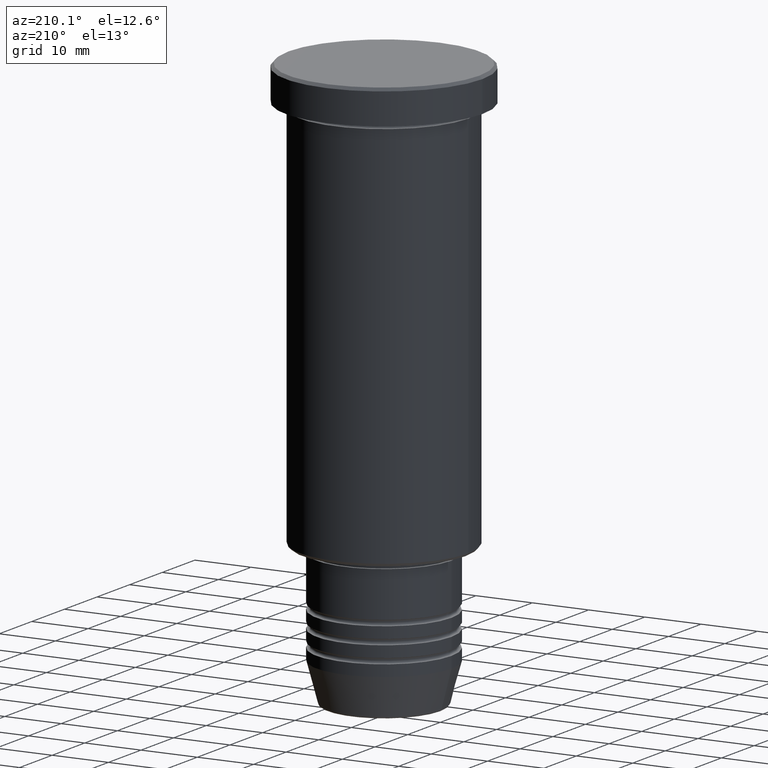
[diagram: clean part render]
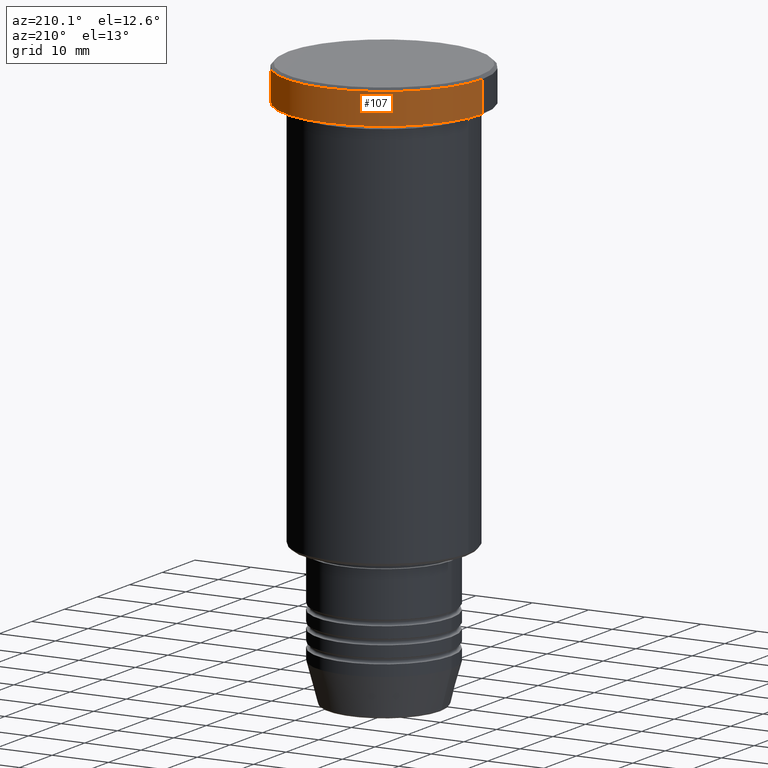
[diagram: same view with one face highlighted and labeled with its STEP entity id]
A machine part, auxiliary view. The second image highlights one B-rep face of the part: STEP entity #107.
In plain terms, the highlighted cylindrical surface (partial cylindrical patch) has radius 17.5 mm, axis along (-0, -0, 1).
Its self-contained STEP definition (entity closure, byte-faithful):
#44 = VECTOR ( 'NONE', #69, 1000.000000000000000 ) ;
#69 = DIRECTION ( 'NONE',  ( -0.000000000000000000, -0.000000000000000000, 1.000000000000000000 ) ) ;
#80 = DIRECTION ( 'NONE',  ( 1.000000000000000000, 0.000000000000000000, 0.000000000000000000 ) ) ;
#87 = ORIENTED_EDGE ( 'NONE', *, *, #892, .T. ) ;
#107 = ADVANCED_FACE ( 'NONE', ( #348 ), #274, .T. ) ;
#127 = ORIENTED_EDGE ( 'NONE', *, *, #242, .T. ) ;
#140 = VERTEX_POINT ( 'NONE', #1111 ) ;
#141 = CARTESIAN_POINT ( 'NONE',  ( 0.000000000000000000, 0.000000000000000000, -0.5000000000000003331 ) ) ;
#242 = EDGE_CURVE ( 'NONE', #1067, #1149, #916, .T. ) ;
#251 = EDGE_CURVE ( 'NONE', #140, #1067, #674, .T. ) ;
#274 = CYLINDRICAL_SURFACE ( 'NONE', #1080, 17.50000000000000000 ) ;
#280 = CARTESIAN_POINT ( 'NONE',  ( -17.50000000000000000, 2.143131898507868248E-15, 0.000000000000000000 ) ) ;
#331 = AXIS2_PLACEMENT_3D ( 'NONE', #640, #444, #992 ) ;
#348 = FACE_OUTER_BOUND ( 'NONE', #691, .T. ) ;
#362 = DIRECTION ( 'NONE',  ( -0.000000000000000000, -0.000000000000000000, 1.000000000000000000 ) ) ;
#384 = VERTEX_POINT ( 'NONE', #854 ) ;
#417 = ORIENTED_EDGE ( 'NONE', *, *, #251, .T. ) ;
#440 = CARTESIAN_POINT ( 'NONE',  ( -17.50000000000000000, 2.143131898507868248E-15, -5.999999999999995559 ) ) ;
#443 = AXIS2_PLACEMENT_3D ( 'NONE', #141, #700, #951 ) ;
#444 = DIRECTION ( 'NONE',  ( -0.000000000000000000, -0.000000000000000000, 1.000000000000000000 ) ) ;
#514 = CARTESIAN_POINT ( 'NONE',  ( 0.000000000000000000, 0.000000000000000000, 0.000000000000000000 ) ) ;
#544 = ORIENTED_EDGE ( 'NONE', *, *, #814, .F. ) ;
#640 = CARTESIAN_POINT ( 'NONE',  ( 0.000000000000000000, 0.000000000000000000, -5.999999999999995559 ) ) ;
#674 = CIRCLE ( 'NONE', #331, 17.50000000000000000 ) ;
#691 = EDGE_LOOP ( 'NONE', ( #417, #127, #87, #544 ) ) ;
#700 = DIRECTION ( 'NONE',  ( 0.000000000000000000, 0.000000000000000000, -1.000000000000000000 ) ) ;
#763 = LINE ( 'NONE', #767, #1024 ) ;
#767 = CARTESIAN_POINT ( 'NONE',  ( 17.50000000000000000, 0.000000000000000000, 0.000000000000000000 ) ) ;
#814 = EDGE_CURVE ( 'NONE', #140, #384, #763, .T. ) ;
#834 = CIRCLE ( 'NONE', #443, 17.50000000000000000 ) ;
#854 = CARTESIAN_POINT ( 'NONE',  ( 17.50000000000000000, 0.000000000000000000, -0.5000000000000003331 ) ) ;
#892 = EDGE_CURVE ( 'NONE', #1149, #384, #834, .T. ) ;
#916 = LINE ( 'NONE', #280, #44 ) ;
#951 = DIRECTION ( 'NONE',  ( 1.000000000000000000, 0.000000000000000000, 0.000000000000000000 ) ) ;
#992 = DIRECTION ( 'NONE',  ( 1.000000000000000000, 0.000000000000000000, 0.000000000000000000 ) ) ;
#1024 = VECTOR ( 'NONE', #1059, 1000.000000000000000 ) ;
#1046 = CARTESIAN_POINT ( 'NONE',  ( -17.50000000000000000, 2.143131898507868248E-15, -0.5000000000000003331 ) ) ;
#1059 = DIRECTION ( 'NONE',  ( -0.000000000000000000, -0.000000000000000000, 1.000000000000000000 ) ) ;
#1067 = VERTEX_POINT ( 'NONE', #440 ) ;
#1080 = AXIS2_PLACEMENT_3D ( 'NONE', #514, #362, #80 ) ;
#1111 = CARTESIAN_POINT ( 'NONE',  ( 17.50000000000000000, 0.000000000000000000, -5.999999999999995559 ) ) ;
#1149 = VERTEX_POINT ( 'NONE', #1046 ) ;